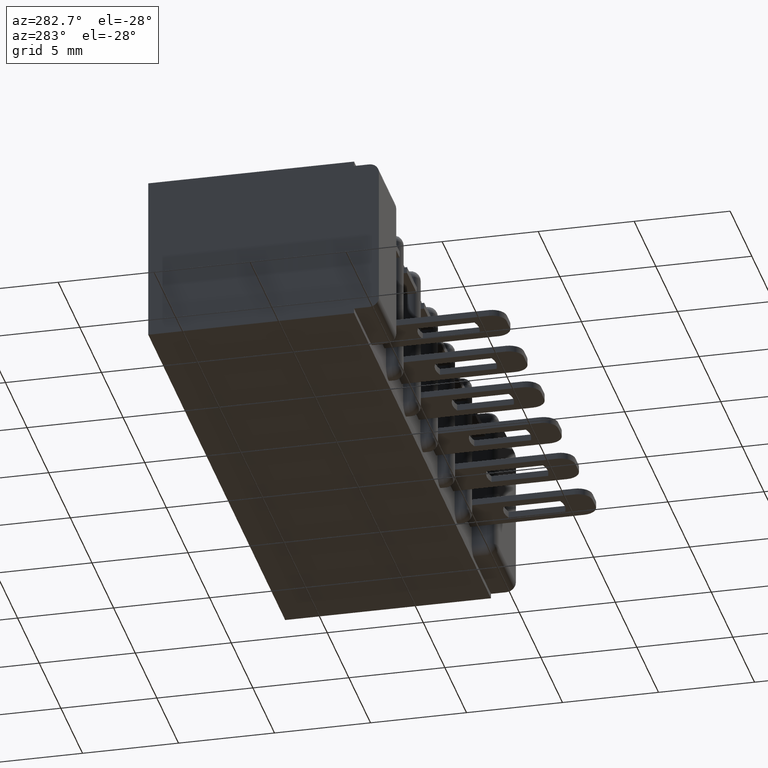
[diagram: clean part render]
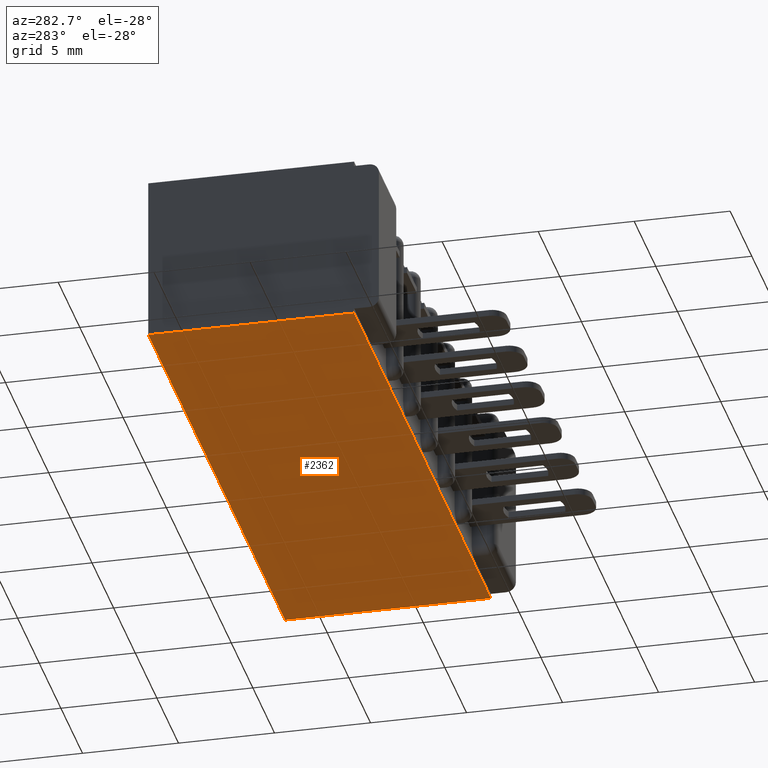
[diagram: same view with one face highlighted and labeled with its STEP entity id]
A machine part, auxiliary view. The second image highlights one B-rep face of the part: STEP entity #2362.
In plain terms, the highlighted planar face has unit normal (0, 0, 1).
Its self-contained STEP definition (entity closure, byte-faithful):
#64 = DIRECTION ( 'NONE',  ( 1.000000000000000000, 0.0000000000000000000, -0.0000000000000000000 ) ) ;
#779 = DIRECTION ( 'NONE',  ( -0.0000000000000000000, 1.000000000000000000, -0.0000000000000000000 ) ) ;
#792 = DIRECTION ( 'NONE',  ( 0.0000000000000000000, 0.0000000000000000000, 1.000000000000000000 ) ) ;
#1417 = CARTESIAN_POINT ( 'NONE',  ( 0.2979999999999998200, 0.0000000000000000000, -0.3430000000000000300 ) ) ;
#1856 = CARTESIAN_POINT ( 'NONE',  ( 1.544000000000000700, 0.4729999999999999800, -0.3430000000000000300 ) ) ;
#2297 = VECTOR ( 'NONE', #779, 39.37007874015748100 ) ;
#2362 = ADVANCED_FACE ( 'NONE', ( #7667 ), #7044, .F. ) ;
#2528 = ORIENTED_EDGE ( 'NONE', *, *, #2904, .T. ) ;
#2743 = VECTOR ( 'NONE', #3389, 39.37007874015748100 ) ;
#2796 = LINE ( 'NONE', #1417, #2297 ) ;
#2904 = EDGE_CURVE ( 'NONE', #9973, #3663, #2796, .T. ) ;
#2919 = VERTEX_POINT ( 'NONE', #7655 ) ;
#3023 = VECTOR ( 'NONE', #3920, 39.37007874015748100 ) ;
#3032 = EDGE_CURVE ( 'NONE', #5167, #3663, #7412, .T. ) ;
#3086 = DIRECTION ( 'NONE',  ( 1.000000000000000000, 0.0000000000000000000, 0.0000000000000000000 ) ) ;
#3255 = EDGE_LOOP ( 'NONE', ( #9429, #9190, #2528, #9721 ) ) ;
#3389 = DIRECTION ( 'NONE',  ( -0.0000000000000000000, 1.000000000000000000, -0.0000000000000000000 ) ) ;
#3437 = AXIS2_PLACEMENT_3D ( 'NONE', #8577, #792, #64 ) ;
#3663 = VERTEX_POINT ( 'NONE', #6070 ) ;
#3920 = DIRECTION ( 'NONE',  ( -1.000000000000000000, -0.0000000000000000000, -0.0000000000000000000 ) ) ;
#4579 = LINE ( 'NONE', #6136, #6773 ) ;
#4754 = CARTESIAN_POINT ( 'NONE',  ( 0.0000000000000000000, 0.4729999999999999800, -0.3430000000000000300 ) ) ;
#4887 = CARTESIAN_POINT ( 'NONE',  ( 1.544000000000000700, 0.0000000000000000000, -0.3430000000000000300 ) ) ;
#5102 = EDGE_CURVE ( 'NONE', #2919, #5167, #6868, .T. ) ;
#5167 = VERTEX_POINT ( 'NONE', #1856 ) ;
#5436 = EDGE_CURVE ( 'NONE', #9973, #2919, #4579, .T. ) ;
#5992 = CARTESIAN_POINT ( 'NONE',  ( 0.2979999999999998800, 0.05099999999999999700, -0.3430000000000000300 ) ) ;
#6070 = CARTESIAN_POINT ( 'NONE',  ( 0.2979999999999998200, 0.4729999999999999800, -0.3430000000000000300 ) ) ;
#6136 = CARTESIAN_POINT ( 'NONE',  ( 0.4730000000000003600, 0.05099999999999999700, -0.3430000000000001400 ) ) ;
#6773 = VECTOR ( 'NONE', #3086, 39.37007874015748100 ) ;
#6868 = LINE ( 'NONE', #4887, #2743 ) ;
#7044 = PLANE ( 'NONE',  #3437 ) ;
#7412 = LINE ( 'NONE', #4754, #3023 ) ;
#7655 = CARTESIAN_POINT ( 'NONE',  ( 1.544000000000000700, 0.05099999999999999700, -0.3430000000000000300 ) ) ;
#7667 = FACE_OUTER_BOUND ( 'NONE', #3255, .T. ) ;
#8577 = CARTESIAN_POINT ( 'NONE',  ( 0.0000000000000000000, 0.4729999999999999800, -0.3430000000000000300 ) ) ;
#9190 = ORIENTED_EDGE ( 'NONE', *, *, #5436, .F. ) ;
#9429 = ORIENTED_EDGE ( 'NONE', *, *, #5102, .F. ) ;
#9721 = ORIENTED_EDGE ( 'NONE', *, *, #3032, .F. ) ;
#9973 = VERTEX_POINT ( 'NONE', #5992 ) ;